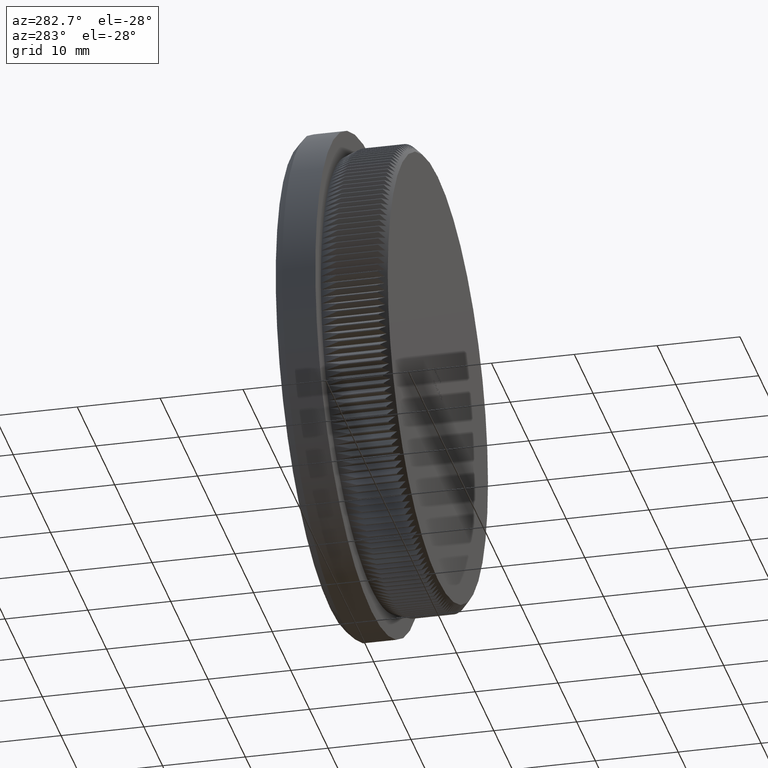
[diagram: clean part render]
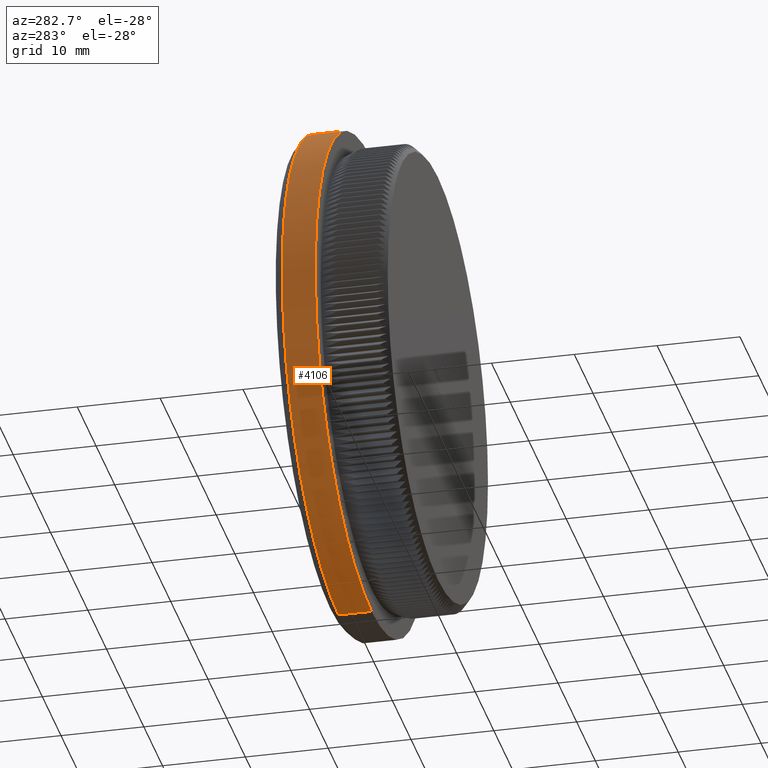
[diagram: same view with one face highlighted and labeled with its STEP entity id]
A machine part, auxiliary view. The second image highlights one B-rep face of the part: STEP entity #4106.
In plain terms, the highlighted cylindrical surface (partial cylindrical patch) has radius 30.15 mm, axis along (-0, -1, -0).
Its self-contained STEP definition (entity closure, byte-faithful):
#275 = VERTEX_POINT ( 'NONE', #27957 ) ;
#1060 = AXIS2_PLACEMENT_3D ( 'NONE', #16396, #25230, #22128 ) ;
#1122 = EDGE_CURVE ( 'NONE', #28405, #32459, #4067, .T. ) ;
#2653 = DIRECTION ( 'NONE',  ( -0.0000000000000000000, -1.000000000000000000, -0.0000000000000000000 ) ) ;
#4067 = LINE ( 'NONE', #34477, #25064 ) ;
#4106 = ADVANCED_FACE ( 'NONE', ( #9543 ), #24007, .T. ) ;
#4848 = EDGE_CURVE ( 'NONE', #275, #28405, #11452, .T. ) ;
#5411 = DIRECTION ( 'NONE',  ( 0.0000000000000000000, 0.0000000000000000000, -1.000000000000000000 ) ) ;
#5722 = EDGE_CURVE ( 'NONE', #275, #14525, #25366, .T. ) ;
#5949 = CARTESIAN_POINT ( 'NONE',  ( 0.0000000000000000000, 8.000000000000000000, -30.14999999999999100 ) ) ;
#9543 = FACE_OUTER_BOUND ( 'NONE', #25873, .T. ) ;
#9989 = DIRECTION ( 'NONE',  ( -0.0000000000000000000, -1.000000000000000000, -0.0000000000000000000 ) ) ;
#11452 = CIRCLE ( 'NONE', #11575, 30.14999999999999500 ) ;
#11575 = AXIS2_PLACEMENT_3D ( 'NONE', #30658, #9989, #13121 ) ;
#13011 = ORIENTED_EDGE ( 'NONE', *, *, #5722, .F. ) ;
#13121 = DIRECTION ( 'NONE',  ( 0.0000000000000000000, 0.0000000000000000000, 1.000000000000000000 ) ) ;
#14062 = DIRECTION ( 'NONE',  ( -0.0000000000000000000, -1.000000000000000000, -0.0000000000000000000 ) ) ;
#14525 = VERTEX_POINT ( 'NONE', #20628 ) ;
#15150 = VECTOR ( 'NONE', #14062, 1000.000000000000000 ) ;
#16396 = CARTESIAN_POINT ( 'NONE',  ( 0.0000000000000000000, 8.000000000000000000, 0.0000000000000000000 ) ) ;
#17945 = ORIENTED_EDGE ( 'NONE', *, *, #1122, .T. ) ;
#20628 = CARTESIAN_POINT ( 'NONE',  ( 3.692310099429268800E-015, 8.000000000000000000, 30.14999999999999100 ) ) ;
#22128 = DIRECTION ( 'NONE',  ( 0.0000000000000000000, 0.0000000000000000000, -1.000000000000000000 ) ) ;
#22936 = CIRCLE ( 'NONE', #1060, 30.14999999999999100 ) ;
#23427 = CARTESIAN_POINT ( 'NONE',  ( 0.0000000000000000000, 0.0000000000000000000, 0.0000000000000000000 ) ) ;
#23755 = ORIENTED_EDGE ( 'NONE', *, *, #4848, .T. ) ;
#24007 = CYLINDRICAL_SURFACE ( 'NONE', #36264, 30.14999999999999500 ) ;
#25064 = VECTOR ( 'NONE', #31828, 1000.000000000000000 ) ;
#25230 = DIRECTION ( 'NONE',  ( -0.0000000000000000000, -1.000000000000000000, -0.0000000000000000000 ) ) ;
#25366 = LINE ( 'NONE', #37473, #15150 ) ;
#25873 = EDGE_LOOP ( 'NONE', ( #13011, #23755, #17945, #28578 ) ) ;
#27957 = CARTESIAN_POINT ( 'NONE',  ( 3.692310099429269600E-015, 11.99999999999998800, 30.14999999999999500 ) ) ;
#28405 = VERTEX_POINT ( 'NONE', #37110 ) ;
#28578 = ORIENTED_EDGE ( 'NONE', *, *, #29846, .F. ) ;
#29846 = EDGE_CURVE ( 'NONE', #14525, #32459, #22936, .T. ) ;
#30658 = CARTESIAN_POINT ( 'NONE',  ( 0.0000000000000000000, 11.99999999999998800, 0.0000000000000000000 ) ) ;
#31828 = DIRECTION ( 'NONE',  ( -0.0000000000000000000, -1.000000000000000000, -0.0000000000000000000 ) ) ;
#32459 = VERTEX_POINT ( 'NONE', #5949 ) ;
#34477 = CARTESIAN_POINT ( 'NONE',  ( 0.0000000000000000000, 0.0000000000000000000, -30.14999999999999500 ) ) ;
#36264 = AXIS2_PLACEMENT_3D ( 'NONE', #23427, #2653, #5411 ) ;
#37110 = CARTESIAN_POINT ( 'NONE',  ( 0.0000000000000000000, 11.99999999999998800, -30.14999999999999500 ) ) ;
#37473 = CARTESIAN_POINT ( 'NONE',  ( 3.692310099429269600E-015, 0.0000000000000000000, 30.14999999999999500 ) ) ;